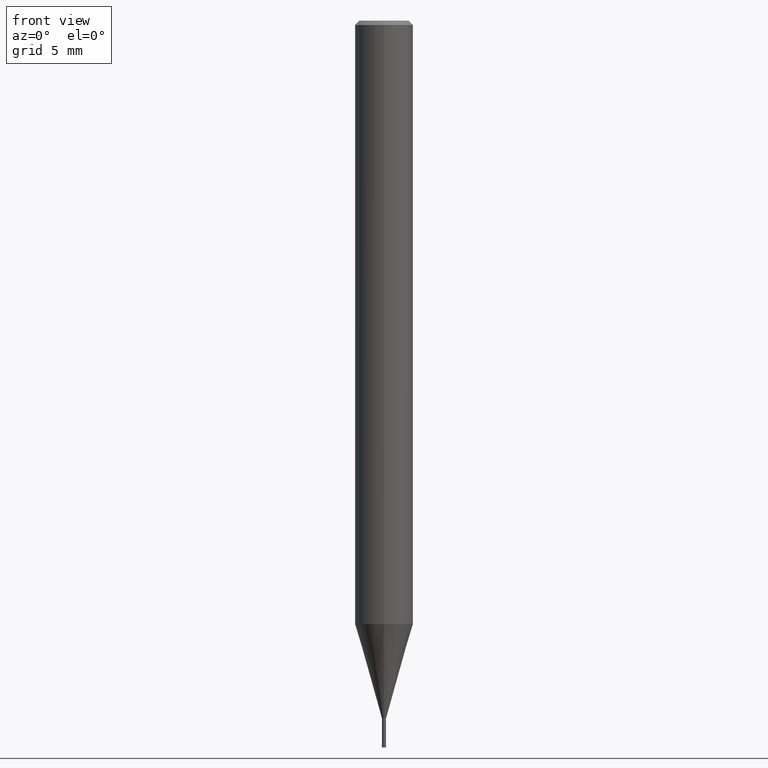
[diagram: clean part render]
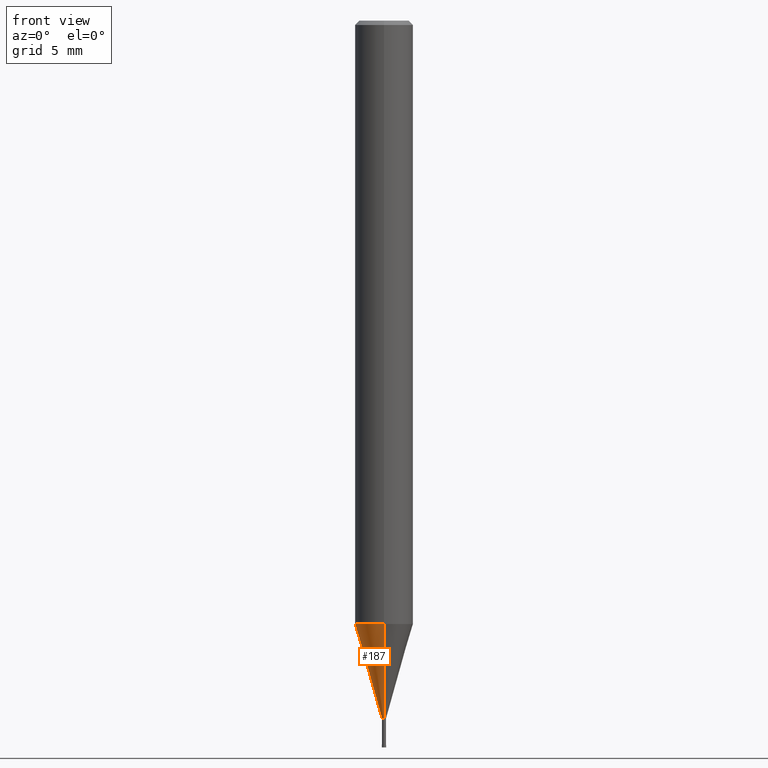
[diagram: same view with one face highlighted and labeled with its STEP entity id]
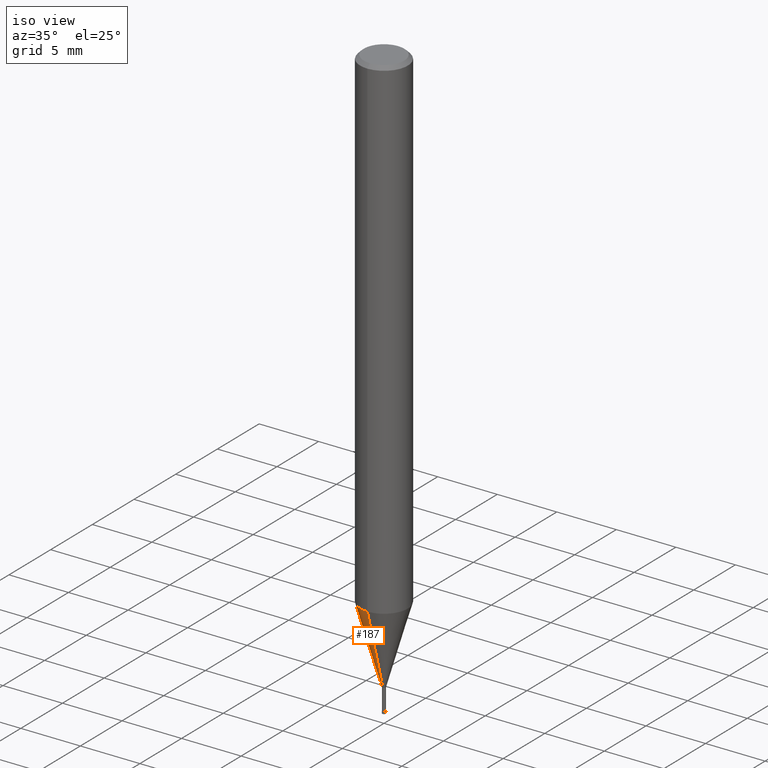
[diagram: same view with one face highlighted and labeled with its STEP entity id]
A machine part, front view. The second image highlights one B-rep face of the part: STEP entity #187.
A second angle (iso view) of the same face is appended — the face is thin or edge-on in the first view.
In plain terms, the highlighted conical surface has half-angle 15.999 deg.
Its self-contained STEP definition (entity closure, byte-faithful):
#155=VERTEX_POINT('',#392);
#187=ADVANCED_FACE('',(#426),#427,.T.);
#213=EDGE_CURVE('',#353,#155,#460,.T.);
#223=VERTEX_POINT('',#471);
#245=EDGE_CURVE('',#223,#155,#498,.T.);
#255=EDGE_CURVE('',#223,#297,#510,.T.);
#293=EDGE_CURVE('',#297,#353,#553,.T.);
#297=VERTEX_POINT('',#557);
#353=VERTEX_POINT('',#618);
#392=CARTESIAN_POINT('',(0.0,0.13995,-47.99));
#426=FACE_OUTER_BOUND('',#708,.T.);
#427=CONICAL_SURFACE('',#709,1.06995,0.27923596926092);
#460=LINE('',#749,#750);
#471=CARTESIAN_POINT('',(1.71383659217442E-017,-0.13995,-47.99));
#498=CIRCLE('',#795,0.13995);
#510=LINE('',#809,#810);
#553=CIRCLE('',#862,1.99995);
#557=CARTESIAN_POINT('',(2.44915147732706E-016,-1.99995,-41.503));
#618=CARTESIAN_POINT('',(0.0,1.99995,-41.503));
#708=EDGE_LOOP('',(#1000,#1001,#1002,#1003));
#709=AXIS2_PLACEMENT_3D('',#1004,#1005,#1006);
#749=CARTESIAN_POINT('',(-1.31026756827225E-016,1.06995,-44.7465));
#750=VECTOR('',#1066,1.0);
#795=AXIS2_PLACEMENT_3D('',#1123,#1124,#1125);
#809=CARTESIAN_POINT('',(1.31026756827225E-016,-1.06995,-44.7465));
#810=VECTOR('',#1137,1.0);
#862=AXIS2_PLACEMENT_3D('',#1182,#1183,#1184);
#1000=ORIENTED_EDGE('',*,*,#213,.T.);
#1001=ORIENTED_EDGE('',*,*,#245,.F.);
#1002=ORIENTED_EDGE('',*,*,#255,.T.);
#1003=ORIENTED_EDGE('',*,*,#293,.T.);
#1004=CARTESIAN_POINT('',(0.0,0.0,-44.7465));
#1005=DIRECTION('',(-0.0,-0.0,1.0));
#1006=DIRECTION('',(0.0,1.0,0.0));
#1066=DIRECTION('',(3.37527585527933E-017,-0.275621292078393,-0.961266301995986));
#1123=CARTESIAN_POINT('',(0.0,0.0,-47.99));
#1124=DIRECTION('',(0.0,0.0,-1.0));
#1125=DIRECTION('',(0.0,1.0,0.0));
#1137=DIRECTION('',(3.37527585527933E-017,-0.275621292078393,0.961266301995986));
#1182=CARTESIAN_POINT('',(0.0,0.0,-41.503));
#1183=DIRECTION('',(0.0,0.0,-1.0));
#1184=DIRECTION('',(0.0,1.0,0.0));